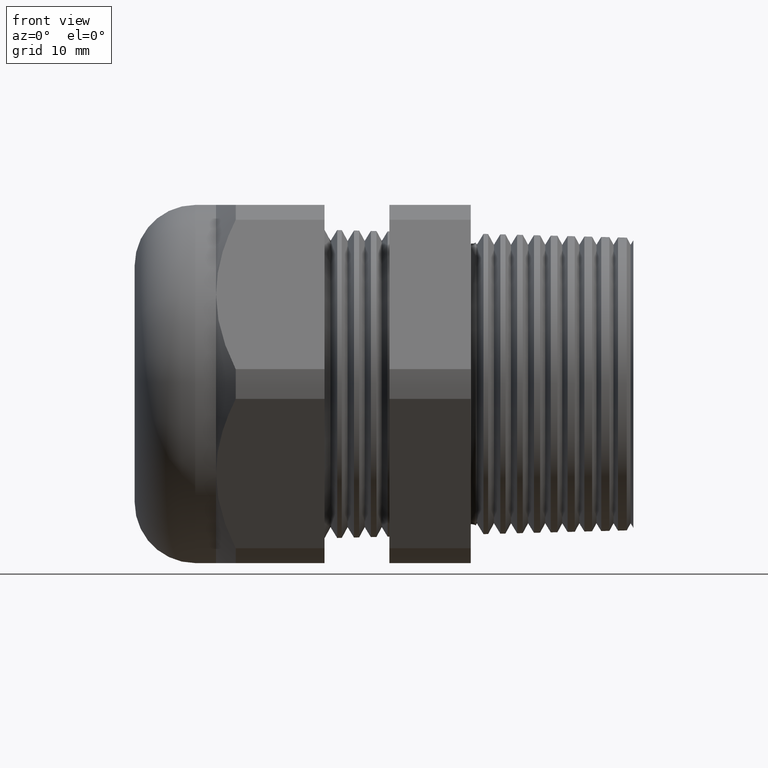
[diagram: clean part render]
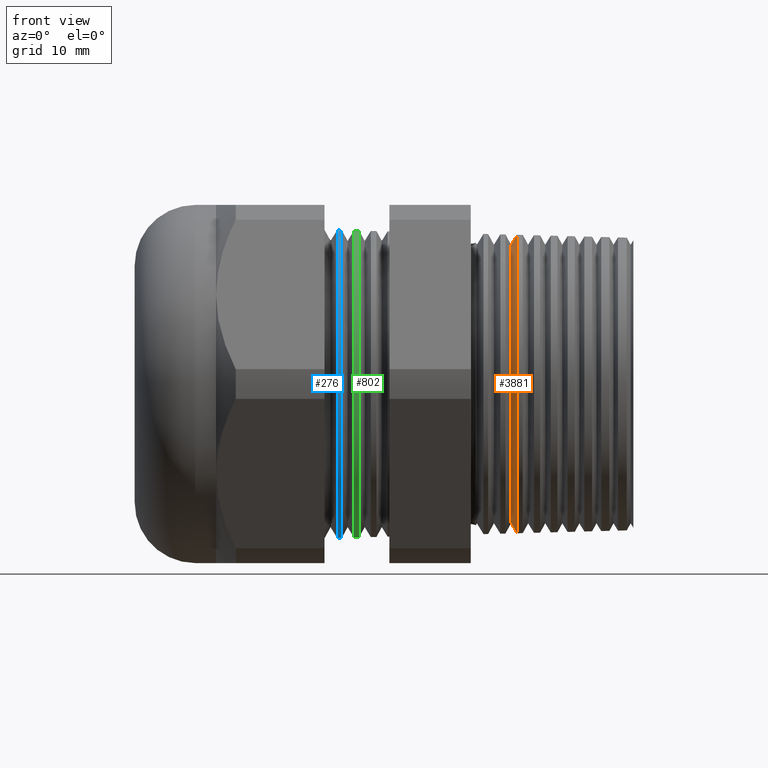
[diagram: same view with three faces highlighted in distinct colors, each labeled with its STEP entity id]
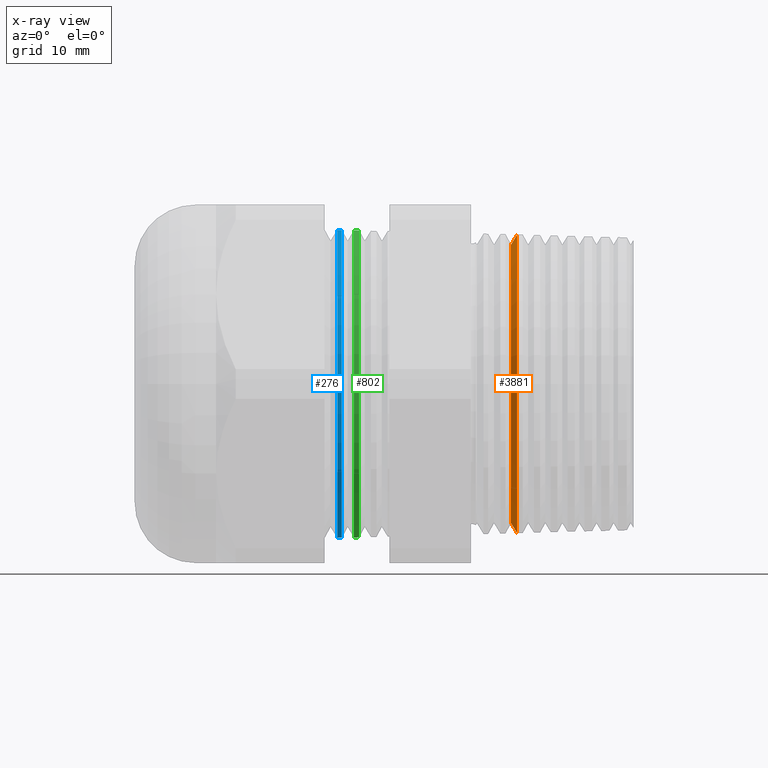
[diagram: x-ray of the same camera — body ghosted, the three highlighted faces saturated]
A machine part, front view with three faces highlighted in distinct colors.
The next image is the same camera in x-ray (body ghosted, the three faces saturated) — at least one of them is partly hidden behind the body in this view.
Their STEP definitions:

[orange] entity #3881 — the highlighted conical surface has half-angle 58.5 deg.
#10 = EDGE_CURVE ( 'NONE', #386, #385, #1058, .T. ) ;
#12 = ORIENTED_EDGE ( 'NONE', *, *, #3640, .T. ) ;
#26 = ORIENTED_EDGE ( 'NONE', *, *, #10, .T. ) ;
#39 = ORIENTED_EDGE ( 'NONE', *, *, #3721, .T. ) ;
#385 = VERTEX_POINT ( 'NONE', #1633 ) ;
#386 = VERTEX_POINT ( 'NONE', #1632 ) ;
#516 = VERTEX_POINT ( 'NONE', #1896 ) ;
#560 = EDGE_CURVE ( 'NONE', #386, #516, #1997, .T. ) ;
#1055 = DIRECTION ( 'NONE',  ( 0.0000000000000000000, 0.0000000000000000000, -1.000000000000000000 ) ) ;
#1056 = DIRECTION ( 'NONE',  ( 1.000000000000000000, 0.0000000000000000000, 0.0000000000000000000 ) ) ;
#1057 = AXIS2_PLACEMENT_3D ( 'NONE', #1063, #1056, #1055 ) ;
#1058 = CIRCLE ( 'NONE', #1057, 0.5055038333565825500 ) ;
#1063 = CARTESIAN_POINT ( 'NONE',  ( -0.1639609809054343700, 0.0000000000000000000, 0.0000000000000000000 ) ) ;
#1632 = CARTESIAN_POINT ( 'NONE',  ( -0.1639609809054343700, 0.0000000000000000000, 0.5055038333565825500 ) ) ;
#1633 = CARTESIAN_POINT ( 'NONE',  ( -0.1639609809054343700, 6.419014391338527200E-017, -0.5055038333565825500 ) ) ;
#1896 = CARTESIAN_POINT ( 'NONE',  ( -0.1417861778538133100, 0.0000000000000000000, 0.5416898231281170900 ) ) ;
#1994 = DIRECTION ( 'NONE',  ( 0.5224985647159479100, 1.044183048100713000E-016, 0.8526401643540927300 ) ) ;
#1995 = VECTOR ( 'NONE', #1994, 39.37007874015748900 ) ;
#1996 = CARTESIAN_POINT ( 'NONE',  ( -0.1639609809054343700, 6.190636514768557700E-017, 0.5055038333565825500 ) ) ;
#1997 = LINE ( 'NONE', #1996, #1995 ) ;
#3051 = CARTESIAN_POINT ( 'NONE',  ( -0.1417861778538133100, 6.633787080245445600E-017, -0.5416898231281170900 ) ) ;
#3052 = DIRECTION ( 'NONE',  ( 0.5224985647159479100, 0.0000000000000000000, -0.8526401643540927300 ) ) ;
#3053 = VECTOR ( 'NONE', #3052, 39.37007874015748900 ) ;
#3054 = CARTESIAN_POINT ( 'NONE',  ( -0.1639609809054343700, 0.0000000000000000000, -0.5055038333565825500 ) ) ;
#3058 = LINE ( 'NONE', #3054, #3053 ) ;
#3204 = DIRECTION ( 'NONE',  ( 0.0000000000000000000, 0.0000000000000000000, -1.000000000000000000 ) ) ;
#3205 = DIRECTION ( 'NONE',  ( -1.000000000000000000, 0.0000000000000000000, 0.0000000000000000000 ) ) ;
#3206 = AXIS2_PLACEMENT_3D ( 'NONE', #3211, #3205, #3204 ) ;
#3207 = CIRCLE ( 'NONE', #3206, 0.5416898231281170900 ) ;
#3211 = CARTESIAN_POINT ( 'NONE',  ( -0.1417861778538133100, 0.0000000000000000000, 0.0000000000000000000 ) ) ;
#3481 = DIRECTION ( 'NONE',  ( 0.0000000000000000000, 0.0000000000000000000, -1.000000000000000000 ) ) ;
#3482 = DIRECTION ( 'NONE',  ( 1.000000000000000000, 0.0000000000000000000, 0.0000000000000000000 ) ) ;
#3483 = CARTESIAN_POINT ( 'NONE',  ( -0.1639609809054343700, 0.0000000000000000000, 0.0000000000000000000 ) ) ;
#3484 = AXIS2_PLACEMENT_3D ( 'NONE', #3483, #3482, #3481 ) ;
#3485 = CONICAL_SURFACE ( 'NONE', #3484, 0.5055038333565825500, 1.021017612416683900 ) ;
#3486 = FACE_OUTER_BOUND ( 'NONE', #3882, .T. ) ;
#3640 = EDGE_CURVE ( 'NONE', #385, #3642, #3058, .T. ) ;
#3642 = VERTEX_POINT ( 'NONE', #3051 ) ;
#3721 = EDGE_CURVE ( 'NONE', #3642, #516, #3207, .T. ) ;
#3880 = ORIENTED_EDGE ( 'NONE', *, *, #560, .F. ) ;
#3881 = ADVANCED_FACE ( 'NONE', ( #3486 ), #3485, .T. ) ;
#3882 = EDGE_LOOP ( 'NONE', ( #3880, #26, #12, #39 ) ) ;

[blue] entity #276 — the highlighted conical surface has half-angle 1.5 deg.
#274 = EDGE_LOOP ( 'NONE', ( #292, #290, #299, #294 ) ) ;
#276 = ADVANCED_FACE ( 'NONE', ( #1452 ), #1451, .T. ) ;
#282 = EDGE_CURVE ( 'NONE', #1078, #1066, #1445, .T. ) ;
#290 = ORIENTED_EDGE ( 'NONE', *, *, #282, .F. ) ;
#292 = ORIENTED_EDGE ( 'NONE', *, *, #1076, .F. ) ;
#293 = EDGE_CURVE ( 'NONE', #632, #635, #1492, .T. ) ;
#294 = ORIENTED_EDGE ( 'NONE', *, *, #293, .T. ) ;
#299 = ORIENTED_EDGE ( 'NONE', *, *, #1077, .T. ) ;
#632 = VERTEX_POINT ( 'NONE', #2110 ) ;
#635 = VERTEX_POINT ( 'NONE', #2104 ) ;
#1066 = VERTEX_POINT ( 'NONE', #2925 ) ;
#1076 = EDGE_CURVE ( 'NONE', #1066, #635, #2907, .T. ) ;
#1077 = EDGE_CURVE ( 'NONE', #1078, #632, #2903, .T. ) ;
#1078 = VERTEX_POINT ( 'NONE', #2962 ) ;
#1442 = DIRECTION ( 'NONE',  ( 0.0000000000000000000, 0.0000000000000000000, 1.000000000000000000 ) ) ;
#1443 = DIRECTION ( 'NONE',  ( 1.000000000000000000, 0.0000000000000000000, 0.0000000000000000000 ) ) ;
#1444 = AXIS2_PLACEMENT_3D ( 'NONE', #1450, #1443, #1442 ) ;
#1445 = CIRCLE ( 'NONE', #1444, 0.5583530569636399000 ) ;
#1446 = DIRECTION ( 'NONE',  ( 0.0000000000000000000, 0.0000000000000000000, 1.000000000000000000 ) ) ;
#1447 = DIRECTION ( 'NONE',  ( -1.000000000000000000, 0.0000000000000000000, 0.0000000000000000000 ) ) ;
#1448 = CARTESIAN_POINT ( 'NONE',  ( -0.6052755905511810800, 0.0000000000000000000, 0.0000000000000000000 ) ) ;
#1449 = AXIS2_PLACEMENT_3D ( 'NONE', #1448, #1447, #1446 ) ;
#1450 = CARTESIAN_POINT ( 'NONE',  ( -0.7781294049386727800, 0.0000000000000000000, 0.0000000000000000000 ) ) ;
#1451 = CONICAL_SURFACE ( 'NONE', #1449, 0.5538267205371555400, 0.02617993877990788800 ) ;
#1452 = FACE_OUTER_BOUND ( 'NONE', #274, .T. ) ;
#1488 = DIRECTION ( 'NONE',  ( 0.0000000000000000000, 0.0000000000000000000, -1.000000000000000000 ) ) ;
#1489 = DIRECTION ( 'NONE',  ( 1.000000000000000000, 0.0000000000000000000, 0.0000000000000000000 ) ) ;
#1490 = CARTESIAN_POINT ( 'NONE',  ( -0.7948514279934830700, 0.0000000000000000000, 0.0000000000000000000 ) ) ;
#1491 = AXIS2_PLACEMENT_3D ( 'NONE', #1490, #1489, #1488 ) ;
#1492 = CIRCLE ( 'NONE', #1491, 0.5587909385478312400 ) ;
#2104 = CARTESIAN_POINT ( 'NONE',  ( -0.7948514279934830700, 6.843215342851469300E-017, -0.5587909385478312400 ) ) ;
#2110 = CARTESIAN_POINT ( 'NONE',  ( -0.7948514279934830700, 0.0000000000000000000, 0.5587909385478312400 ) ) ;
#2902 = CARTESIAN_POINT ( 'NONE',  ( -0.6052755905511810800, 0.0000000000000000000, 0.5538267205371555400 ) ) ;
#2903 = LINE ( 'NONE', #2902, #2964 ) ;
#2904 = DIRECTION ( 'NONE',  ( -0.9996573249755573700, 3.205751595667394200E-018, -0.02617694830786609600 ) ) ;
#2905 = VECTOR ( 'NONE', #2904, 39.37007874015748100 ) ;
#2906 = CARTESIAN_POINT ( 'NONE',  ( -0.6052755905511810800, 6.782421205881032700E-017, -0.5538267205371555400 ) ) ;
#2907 = LINE ( 'NONE', #2906, #2905 ) ;
#2925 = CARTESIAN_POINT ( 'NONE',  ( -0.7781294049386727800, 6.837852840046613100E-017, -0.5583530569636399000 ) ) ;
#2962 = CARTESIAN_POINT ( 'NONE',  ( -0.7781294049386727800, 0.0000000000000000000, 0.5583530569636399000 ) ) ;
#2963 = DIRECTION ( 'NONE',  ( -0.9996573249755573700, 0.0000000000000000000, 0.02617694830786609600 ) ) ;
#2964 = VECTOR ( 'NONE', #2963, 39.37007874015748100 ) ;

[green] entity #802 — the highlighted conical surface has half-angle 1.5 deg.
#545 = EDGE_CURVE ( 'NONE', #3734, #597, #1963, .T. ) ;
#597 = VERTEX_POINT ( 'NONE', #2059 ) ;
#599 = VERTEX_POINT ( 'NONE', #2054 ) ;
#707 = EDGE_CURVE ( 'NONE', #3734, #3742, #2238, .T. ) ;
#723 = EDGE_LOOP ( 'NONE', ( #724, #725, #726, #727 ) ) ;
#724 = ORIENTED_EDGE ( 'NONE', *, *, #3779, .F. ) ;
#725 = ORIENTED_EDGE ( 'NONE', *, *, #707, .F. ) ;
#726 = ORIENTED_EDGE ( 'NONE', *, *, #545, .T. ) ;
#727 = ORIENTED_EDGE ( 'NONE', *, *, #728, .F. ) ;
#728 = EDGE_CURVE ( 'NONE', #599, #597, #2276, .T. ) ;
#802 = ADVANCED_FACE ( 'NONE', ( #2387 ), #2386, .T. ) ;
#1960 = DIRECTION ( 'NONE',  ( -0.9996573249755573700, 0.0000000000000000000, 0.02617694830786609600 ) ) ;
#1961 = VECTOR ( 'NONE', #1960, 39.37007874015748100 ) ;
#1962 = CARTESIAN_POINT ( 'NONE',  ( -0.6052755905511810800, 0.0000000000000000000, 0.5538267205371555400 ) ) ;
#1963 = LINE ( 'NONE', #1962, #1961 ) ;
#2054 = CARTESIAN_POINT ( 'NONE',  ( -0.7338306139472736700, 6.823646880028237200E-017, -0.5571930522971296800 ) ) ;
#2059 = CARTESIAN_POINT ( 'NONE',  ( -0.7338306139472736700, 0.0000000000000000000, 0.5571930522971296800 ) ) ;
#2234 = DIRECTION ( 'NONE',  ( 0.0000000000000000000, 0.0000000000000000000, 1.000000000000000000 ) ) ;
#2235 = DIRECTION ( 'NONE',  ( 1.000000000000000000, 0.0000000000000000000, 0.0000000000000000000 ) ) ;
#2236 = CARTESIAN_POINT ( 'NONE',  ( -0.7152351878301014300, 0.0000000000000000000, 0.0000000000000000000 ) ) ;
#2237 = AXIS2_PLACEMENT_3D ( 'NONE', #2236, #2235, #2234 ) ;
#2238 = CIRCLE ( 'NONE', #2237, 0.5567061139272799800 ) ;
#2273 = DIRECTION ( 'NONE',  ( 0.0000000000000000000, 0.0000000000000000000, -1.000000000000000000 ) ) ;
#2274 = DIRECTION ( 'NONE',  ( -1.000000000000000000, 0.0000000000000000000, 0.0000000000000000000 ) ) ;
#2275 = AXIS2_PLACEMENT_3D ( 'NONE', #2281, #2274, #2273 ) ;
#2276 = CIRCLE ( 'NONE', #2275, 0.5571930522971296800 ) ;
#2281 = CARTESIAN_POINT ( 'NONE',  ( -0.7338306139472736700, 0.0000000000000000000, 0.0000000000000000000 ) ) ;
#2382 = DIRECTION ( 'NONE',  ( 0.0000000000000000000, 0.0000000000000000000, 1.000000000000000000 ) ) ;
#2383 = DIRECTION ( 'NONE',  ( -1.000000000000000000, 0.0000000000000000000, 0.0000000000000000000 ) ) ;
#2384 = AXIS2_PLACEMENT_3D ( 'NONE', #2393, #2383, #2382 ) ;
#2386 = CONICAL_SURFACE ( 'NONE', #2384, 0.5538267205371555400, 0.02617993877990788800 ) ;
#2387 = FACE_OUTER_BOUND ( 'NONE', #723, .T. ) ;
#2393 = CARTESIAN_POINT ( 'NONE',  ( -0.6052755905511810800, 0.0000000000000000000, 0.0000000000000000000 ) ) ;
#3229 = CARTESIAN_POINT ( 'NONE',  ( -0.7152351878301014300, 6.817683604868052300E-017, -0.5567061139272800900 ) ) ;
#3241 = CARTESIAN_POINT ( 'NONE',  ( -0.7152351878301014300, 0.0000000000000000000, 0.5567061139272800900 ) ) ;
#3285 = DIRECTION ( 'NONE',  ( -0.9996573249755573700, 3.205751595667394200E-018, -0.02617694830786609600 ) ) ;
#3286 = VECTOR ( 'NONE', #3285, 39.37007874015748100 ) ;
#3287 = CARTESIAN_POINT ( 'NONE',  ( -0.6052755905511810800, 6.782421205881032700E-017, -0.5538267205371555400 ) ) ;
#3288 = LINE ( 'NONE', #3287, #3286 ) ;
#3734 = VERTEX_POINT ( 'NONE', #3241 ) ;
#3742 = VERTEX_POINT ( 'NONE', #3229 ) ;
#3779 = EDGE_CURVE ( 'NONE', #3742, #599, #3288, .T. ) ;